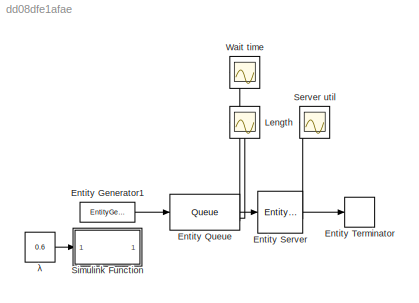
MODEL slx_dd08dfe1afae
KIND model
CONFIG AbsTol = auto
CONFIG EnableMultiTasking = off
CONFIG FixedStep = auto
CONFIG MaxStep = auto
CONFIG MinStep = auto
CONFIG RelTol = 1e-3
CONFIG SampleTimeConstraint = Unconstrained
CONFIG SolverName = VariableStepAuto
CONFIG StartTime = 0.0
CONFIG StopTime = 100
BLOCK [Constant]  λ
  SampleTime = -1
  Value = 0.6
BLOCK [EntityGenerator] Entity Generator1
  AttributeInitialValue = 0
  AttributeName = entity
  EntityType = Structured
  EntityTypeName = Entity
  IntergenerationTimeAction = dt = expAT();
  OutputPortMap = o3
  OutputPortMessageModes = m
  TimeSource = MATLAB action
BLOCK [Queue] Entity Queue
  AverageQueueLength = on
  AverageWait = on
  Capacity = inf
  InputPortMap = u0
  InputPortMessageModes = m
  OutputPortMap = o2,o3,o5
  OutputPortMessageModes = n,n,m
BLOCK [EntityServer] Entity Server
  Capacity = 1
  InputPortMap = u2
  InputPortMessageModes = m
  OutputPortMap = o5,o9
  OutputPortMessageModes = n,m
  Utilization = on
BLOCK [EntityTerminator] Entity Terminator
  InputPortMap = u0
  InputPortMessageModes = m
BLOCK [Scope] Length
  Floating = off
  NumInputPorts = 1
  ScopeSpecificationString = Simulink.scopes.TimeScopeBlockCfg('CurrentConfiguration', extmgr.ConfigurationSet(extmgr.Configuration('Core','General UI',true),extmgr.Configuration('Core','Source UI',true),extmgr.Configuration('Sources','WiredSimulink',true,'DataLoggingVariableName','ScopeData2'),extmgr.Configuration('Visuals','Time Domain',true,'SerializedDisplays',{struct('MinYLimReal','-0.04653','MaxYLimReal','0.41874','YLab...<+1525ch>
BLOCK [Scope] Server util
  Floating = off
  NumInputPorts = 1
  ScopeSpecificationString = Simulink.scopes.TimeScopeBlockCfg('CurrentConfiguration', extmgr.ConfigurationSet(extmgr.Configuration('Core','General UI',true),extmgr.Configuration('Core','Source UI',true),extmgr.Configuration('Sources','WiredSimulink',true),extmgr.Configuration('Visuals','Time Domain',true,'SerializedDisplays',{struct('MinYLimReal','0.2173','MaxYLimReal','1.08697','YLabelReal','','MinYLimMag','0.2173','MaxYLim...<+1482ch>
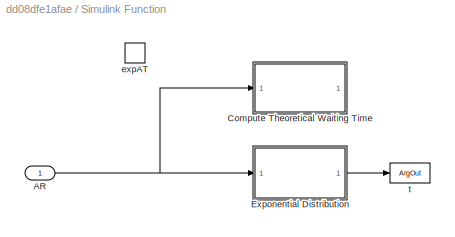
BLOCK [SubSystem] Simulink Function
  LibrarySourceBlock = sldelib/Simulink Function
  TreatAsAtomicUnit = on
BLOCK [Inport] Simulink Function/AR
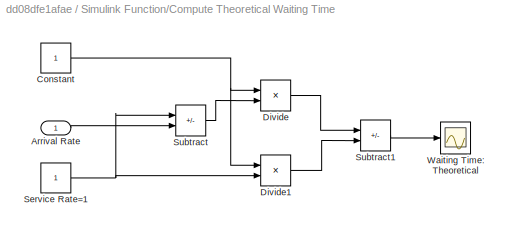
BLOCK [SubSystem] Simulink Function/Compute Theoretical Waiting Time
BLOCK [Inport] Simulink Function/Compute Theoretical Waiting Time/Arrival Rate
BLOCK [Constant] Simulink Function/Compute Theoretical Waiting Time/Constant
BLOCK [Product] Simulink Function/Compute Theoretical Waiting Time/Divide
  Inputs = */
BLOCK [Product] Simulink Function/Compute Theoretical Waiting Time/Divide1
  Inputs = */
BLOCK [Constant] Simulink Function/Compute Theoretical Waiting Time/Service Rate=1
BLOCK [Sum] Simulink Function/Compute Theoretical Waiting Time/Subtract
  IconShape = rectangular
  Inputs = +-
BLOCK [Sum] Simulink Function/Compute Theoretical Waiting Time/Subtract1
  IconShape = rectangular
  Inputs = +-
BLOCK [Scope] Simulink Function/Compute Theoretical Waiting Time/Waiting Time: Theoretical
  Floating = off
  NumInputPorts = 1
  ScopeSpecificationString = Simulink.scopes.TimeScopeBlockCfg('CurrentConfiguration', extmgr.ConfigurationSet(extmgr.Configuration('Core','General UI',true,'ShowMainToolbar',false,'ShowStatusbar',false),extmgr.Configuration('Core','Source UI',true),extmgr.Configuration('Sources','WiredSimulink',true,'DataLoggingVariableName','ScopeData2'),extmgr.Configuration('Visuals','Time Domain',true,'SerializedDisplays',{struct('MinYLim...<+1456ch>
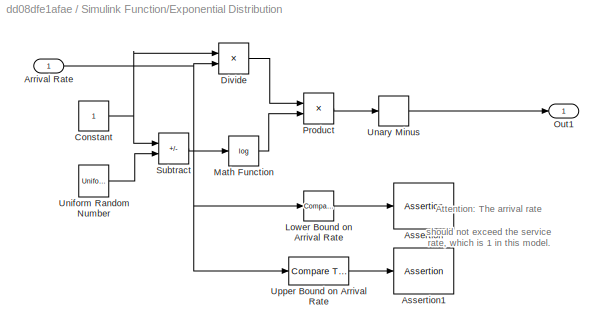
BLOCK [SubSystem] Simulink Function/Exponential Distribution
BLOCK [Inport] Simulink Function/Exponential Distribution/Arrival Rate
BLOCK [Assertion] Simulink Function/Exponential Distribution/Assertion
BLOCK [Assertion] Simulink Function/Exponential Distribution/Assertion1
BLOCK [Constant] Simulink Function/Exponential Distribution/Constant
BLOCK [Product] Simulink Function/Exponential Distribution/Divide
  Inputs = */
BLOCK [Reference] Simulink Function/Exponential Distribution/Lower Bound on Arrival Rate  REF=simulink/Logic and Bit
Operations/Compare
To Constant
  SourceBlock = simulink/Logic and Bit\nOperations/Compare\nTo Constant
  SourceType = Compare To Constant
BLOCK [Math] Simulink Function/Exponential Distribution/Math Function
  Operator = log
  SignedPower = on
BLOCK [Outport] Simulink Function/Exponential Distribution/Out1
BLOCK [Product] Simulink Function/Exponential Distribution/Product
  RndMeth = Zero
BLOCK [Sum] Simulink Function/Exponential Distribution/Subtract
  IconShape = rectangular
  Inputs = +-
BLOCK [UnaryMinus] Simulink Function/Exponential Distribution/Unary Minus
BLOCK [UniformRandomNumber] Simulink Function/Exponential Distribution/Uniform Random Number
  Minimum = 0
  Seed = 12345
BLOCK [Reference] Simulink Function/Exponential Distribution/Upper Bound on Arrival Rate   REF=simulink/Logic and Bit
Operations/Compare
To Constant
  SourceBlock = simulink/Logic and Bit\nOperations/Compare\nTo Constant
  SourceType = Compare To Constant
BLOCK [TriggerPort] Simulink Function/expAT
  FunctionName = expAT
  IsSimulinkFunction = on
  StatesWhenEnabling = held
  TriggerType = function-call
  VariantControl = Variant
BLOCK [ArgOut] Simulink Function/t
  ArgumentName = t
  DisableCoverage = on
BLOCK [Scope] Wait time
  Floating = off
  NumInputPorts = 1
  ScopeSpecificationString = Simulink.scopes.TimeScopeBlockCfg('CurrentConfiguration', extmgr.ConfigurationSet(extmgr.Configuration('Core','General UI',true),extmgr.Configuration('Core','Source UI',true),extmgr.Configuration('Sources','WiredSimulink',true,'DataLoggingVariableName','ScopeData1'),extmgr.Configuration('Visuals','Time Domain',true,'SerializedDisplays',{struct('MinYLimReal','-0.07632','MaxYLimReal','0.68685','YLab...<+1519ch>
ANNOTATION Simulink Function/Exponential Distribution: Attention: The arrival rate should not exceed the service rate, which is 1 in this model.
LINE  λ:1 -> Simulink Function:1
LINE Entity Generator1:1 -> Entity Queue:1
LINE Entity Queue:1 -> Wait time:1
LINE Entity Queue:2 -> Length:1
LINE Entity Queue:3 -> Entity Server:1
LINE Entity Server:1 -> Server util:1
LINE Entity Server:2 -> Entity Terminator:1
NET Simulink Function/AR:1 -> Simulink Function/Compute Theoretical Waiting Time:1, Simulink Function/Exponential Distribution:1
LINE Simulink Function/Compute Theoretical Waiting Time/Arrival Rate:1 -> Simulink Function/Compute Theoretical Waiting Time/Subtract:2
NET Simulink Function/Compute Theoretical Waiting Time/Constant:1 -> Simulink Function/Compute Theoretical Waiting Time/Divide1:1, Simulink Function/Compute Theoretical Waiting Time/Divide:1
LINE Simulink Function/Compute Theoretical Waiting Time/Divide1:1 -> Simulink Function/Compute Theoretical Waiting Time/Subtract1:2
LINE Simulink Function/Compute Theoretical Waiting Time/Divide:1 -> Simulink Function/Compute Theoretical Waiting Time/Subtract1:1
NET Simulink Function/Compute Theoretical Waiting Time/Service Rate=1:1 -> Simulink Function/Compute Theoretical Waiting Time/Divide1:2, Simulink Function/Compute Theoretical Waiting Time/Subtract:1
LINE Simulink Function/Compute Theoretical Waiting Time/Subtract1:1 -> Simulink Function/Compute Theoretical Waiting Time/Waiting Time: Theoretical:1
LINE Simulink Function/Compute Theoretical Waiting Time/Subtract:1 -> Simulink Function/Compute Theoretical Waiting Time/Divide:2
NET Simulink Function/Exponential Distribution/Arrival Rate:1 -> Simulink Function/Exponential Distribution/Divide:2, Simulink Function/Exponential Distribution/Lower Bound on Arrival Rate:1, Simulink Function/Exponential Distribution/Upper Bound on Arrival Rate :1
NET Simulink Function/Exponential Distribution/Constant:1 -> Simulink Function/Exponential Distribution/Divide:1, Simulink Function/Exponential Distribution/Subtract:1
LINE Simulink Function/Exponential Distribution/Divide:1 -> Simulink Function/Exponential Distribution/Product:1
LINE Simulink Function/Exponential Distribution/Lower Bound on Arrival Rate:1 -> Simulink Function/Exponential Distribution/Assertion:1
LINE Simulink Function/Exponential Distribution/Math Function:1 -> Simulink Function/Exponential Distribution/Product:2
LINE Simulink Function/Exponential Distribution/Product:1 -> Simulink Function/Exponential Distribution/Unary Minus:1
LINE Simulink Function/Exponential Distribution/Subtract:1 -> Simulink Function/Exponential Distribution/Math Function:1
LINE Simulink Function/Exponential Distribution/Unary Minus:1 -> Simulink Function/Exponential Distribution/Out1:1
LINE Simulink Function/Exponential Distribution/Uniform Random Number:1 -> Simulink Function/Exponential Distribution/Subtract:2
LINE Simulink Function/Exponential Distribution/Upper Bound on Arrival Rate :1 -> Simulink Function/Exponential Distribution/Assertion1:1
LINE Simulink Function/Exponential Distribution:1 -> Simulink Function/t:1
note: NET lines group one-source signal fan-out (src -> all destinations, sorted); 1:1 wires keep LINE
